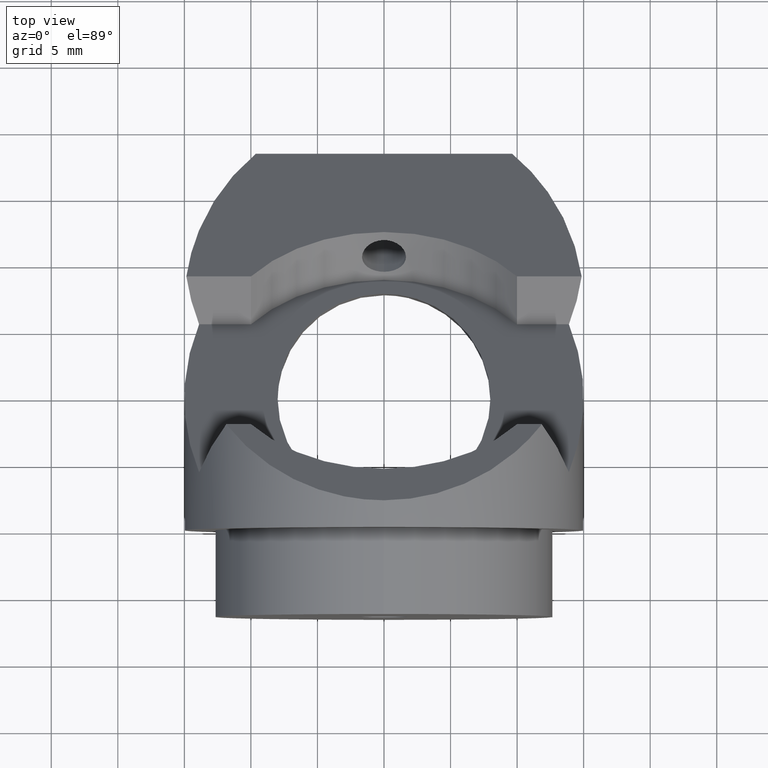
[diagram: clean part render]
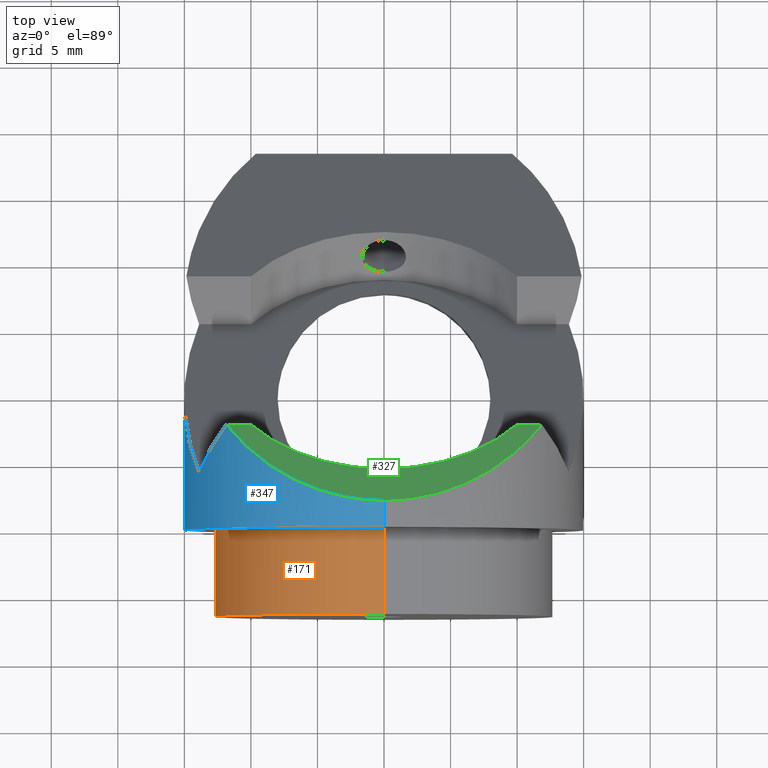
[diagram: same view with three faces highlighted in distinct colors, each labeled with its STEP entity id]
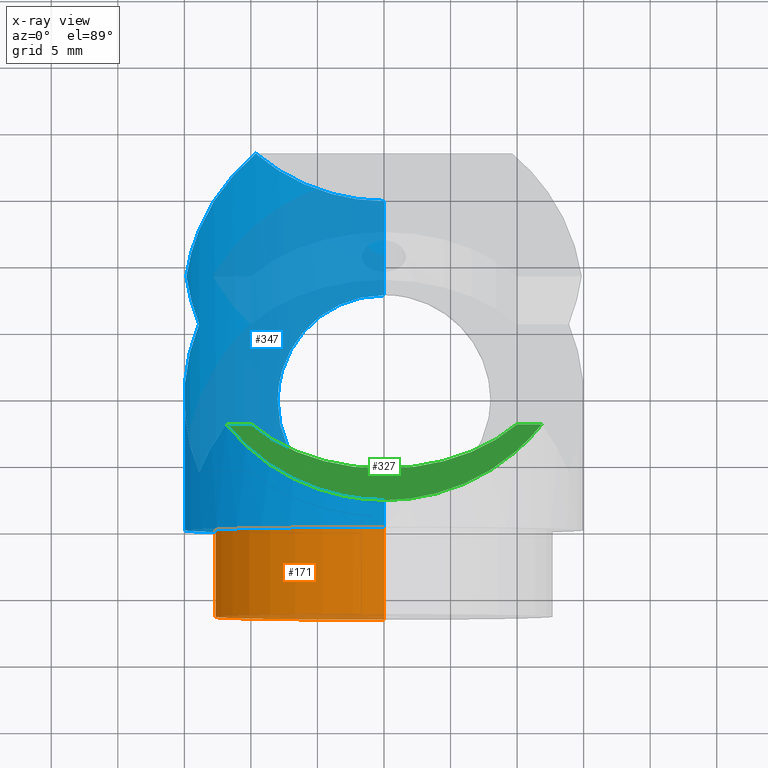
[diagram: x-ray of the same camera — body ghosted, the three highlighted faces saturated]
A machine part, top view with three faces highlighted in distinct colors.
The next image is the same camera in x-ray (body ghosted, the three faces saturated) — at least one of them is partly hidden behind the body in this view.
Their STEP definitions:

[orange] entity #171 — the highlighted cylindrical surface (partial cylindrical patch) has radius 12.7 mm, axis along (-0, -1, -0).
#6 = EDGE_CURVE ( 'NONE', #527, #781, #939, .T. ) ;
#32 = DIRECTION ( 'NONE',  ( 0.0000000000000000000, 0.0000000000000000000, -1.000000000000000000 ) ) ;
#36 = DIRECTION ( 'NONE',  ( -0.0000000000000000000, -1.000000000000000000, -0.0000000000000000000 ) ) ;
#74 = CARTESIAN_POINT ( 'NONE',  ( 0.0000000000000000000, -6.500000000000000000, -12.69999999999999900 ) ) ;
#112 = AXIS2_PLACEMENT_3D ( 'NONE', #393, #713, #940 ) ;
#160 = EDGE_CURVE ( 'NONE', #869, #368, #176, .T. ) ;
#171 = ADVANCED_FACE ( 'NONE', ( #253 ), #881, .T. ) ;
#176 = CIRCLE ( 'NONE', #785, 12.70000000000000300 ) ;
#179 = CARTESIAN_POINT ( 'NONE',  ( 0.0000000000000000000, -7.664944013781219000, 0.0000000000000000000 ) ) ;
#241 = DIRECTION ( 'NONE',  ( 0.0000000000000000000, 0.0000000000000000000, -1.000000000000000000 ) ) ;
#244 = CARTESIAN_POINT ( 'NONE',  ( 1.555301434917139000E-015, 0.0000000000000000000, 12.70000000000000500 ) ) ;
#253 = FACE_OUTER_BOUND ( 'NONE', #453, .T. ) ;
#330 = EDGE_CURVE ( 'NONE', #368, #781, #566, .T. ) ;
#335 = DIRECTION ( 'NONE',  ( -0.0000000000000000000, -1.000000000000000000, -0.0000000000000000000 ) ) ;
#368 = VERTEX_POINT ( 'NONE', #838 ) ;
#388 = CARTESIAN_POINT ( 'NONE',  ( 1.555301434917138600E-015, -7.664944013781219000, 12.70000000000000100 ) ) ;
#393 = CARTESIAN_POINT ( 'NONE',  ( 0.0000000000000000000, -6.500000000000000000, 0.0000000000000000000 ) ) ;
#453 = EDGE_LOOP ( 'NONE', ( #1007, #1002, #498, #971 ) ) ;
#498 = ORIENTED_EDGE ( 'NONE', *, *, #330, .T. ) ;
#527 = VERTEX_POINT ( 'NONE', #878 ) ;
#566 = LINE ( 'NONE', #975, #715 ) ;
#570 = LINE ( 'NONE', #388, #985 ) ;
#595 = DIRECTION ( 'NONE',  ( -0.0000000000000000000, -1.000000000000000000, -0.0000000000000000000 ) ) ;
#713 = DIRECTION ( 'NONE',  ( -0.0000000000000000000, -1.000000000000000000, -0.0000000000000000000 ) ) ;
#715 = VECTOR ( 'NONE', #595, 1000.000000000000000 ) ;
#716 = DIRECTION ( 'NONE',  ( -0.0000000000000000000, -1.000000000000000000, -0.0000000000000000000 ) ) ;
#728 = CARTESIAN_POINT ( 'NONE',  ( 0.0000000000000000000, 0.0000000000000000000, 0.0000000000000000000 ) ) ;
#781 = VERTEX_POINT ( 'NONE', #74 ) ;
#785 = AXIS2_PLACEMENT_3D ( 'NONE', #728, #36, #32 ) ;
#838 = CARTESIAN_POINT ( 'NONE',  ( 0.0000000000000000000, 0.0000000000000000000, -12.70000000000000300 ) ) ;
#869 = VERTEX_POINT ( 'NONE', #244 ) ;
#878 = CARTESIAN_POINT ( 'NONE',  ( 1.555301434917138600E-015, -6.500000000000000000, 12.69999999999999900 ) ) ;
#881 = CYLINDRICAL_SURFACE ( 'NONE', #885, 12.70000000000000100 ) ;
#885 = AXIS2_PLACEMENT_3D ( 'NONE', #179, #335, #241 ) ;
#927 = EDGE_CURVE ( 'NONE', #869, #527, #570, .T. ) ;
#939 = CIRCLE ( 'NONE', #112, 12.69999999999999900 ) ;
#940 = DIRECTION ( 'NONE',  ( 0.0000000000000000000, 0.0000000000000000000, -1.000000000000000000 ) ) ;
#971 = ORIENTED_EDGE ( 'NONE', *, *, #6, .F. ) ;
#975 = CARTESIAN_POINT ( 'NONE',  ( 0.0000000000000000000, -7.664944013781219000, -12.70000000000000100 ) ) ;
#985 = VECTOR ( 'NONE', #716, 1000.000000000000000 ) ;
#1002 = ORIENTED_EDGE ( 'NONE', *, *, #160, .T. ) ;
#1007 = ORIENTED_EDGE ( 'NONE', *, *, #927, .F. ) ;

[blue] entity #347 — the highlighted cylindrical surface (partial cylindrical patch) has radius 15 mm, axis along (-0, -1, -0).
#7 = VERTEX_POINT ( 'NONE', #858 ) ;
#13 = CARTESIAN_POINT ( 'NONE',  ( 1.312247599340864500E-016, 17.92893218813432600, -15.00000000000000000 ) ) ;
#18 = DIRECTION ( 'NONE',  ( -0.0000000000000000000, -1.000000000000000000, -0.0000000000000000000 ) ) ;
#30 = CARTESIAN_POINT ( 'NONE',  ( -5.848556111032858800, 15.39335958322153500, -13.81421338319534400 ) ) ;
#37 = CYLINDRICAL_SURFACE ( 'NONE', #813, 15.00000000000000000 ) ;
#61 = DIRECTION ( 'NONE',  ( -0.0000000000000000000, -1.000000000000000000, -0.0000000000000000000 ) ) ;
#63 = CARTESIAN_POINT ( 'NONE',  ( -3.576409944130032800, 2.753947597043895400, -14.57566637414122600 ) ) ;
#75 = VERTEX_POINT ( 'NONE', #854 ) ;
#96 = CARTESIAN_POINT ( 'NONE',  ( -11.85326959112950500, 7.807611844574621400, 9.192388155425320000 ) ) ;
#105 = CARTESIAN_POINT ( 'NONE',  ( 1.312247599340864500E-016, 17.92893218813432600, -15.00000000000000000 ) ) ;
#107 = VERTEX_POINT ( 'NONE', #321 ) ;
#113 = CIRCLE ( 'NONE', #644, 15.00000000000000000 ) ;
#121 = CARTESIAN_POINT ( 'NONE',  ( -4.720855478036189500, 2.000000000000001800, 15.00000000000000000 ) ) ;
#131 = CARTESIAN_POINT ( 'NONE',  ( -12.69220912968829600, 6.725828052043423700, 8.110604362894134700 ) ) ;
#134 = CARTESIAN_POINT ( 'NONE',  ( -8.000000000000104800, 9.928932188134222500, -12.68857754044945300 ) ) ;
#135 = EDGE_CURVE ( 'NONE', #753, #7, #355, .T. ) ;
#140 = CARTESIAN_POINT ( 'NONE',  ( -1.843974823227151300, 2.139791552717057700, -14.88854263611860200 ) ) ;
#144 = CARTESIAN_POINT ( 'NONE',  ( -7.986389873771929400, 9.391158058453209300, -12.69718802926070500 ) ) ;
#157 = VECTOR ( 'NONE', #18, 1000.000000000000000 ) ;
#159 = ORIENTED_EDGE ( 'NONE', *, *, #135, .T. ) ;
#172 = VERTEX_POINT ( 'NONE', #880 ) ;
#193 = CARTESIAN_POINT ( 'NONE',  ( -7.568643659071402600, 12.53391963720620700, -12.95082402000563900 ) ) ;
#196 = VERTEX_POINT ( 'NONE', #577 ) ;
#199 = CARTESIAN_POINT ( 'NONE',  ( 0.0000000000000000000, 25.00000000000000700, -15.00000000000000000 ) ) ;
#204 = CARTESIAN_POINT ( 'NONE',  ( -6.492218660363217700, 5.247279350077104900, -13.52320181177037400 ) ) ;
#208 = CARTESIAN_POINT ( 'NONE',  ( -7.932593759793550500, 8.858614257552190500, -12.73086655763748500 ) ) ;
#216 = CARTESIAN_POINT ( 'NONE',  ( -7.892611762494417400, 8.596062843617303900, -12.75580203211171000 ) ) ;
#236 = CARTESIAN_POINT ( 'NONE',  ( -14.35518363273349100, 16.72221037440975200, -4.520430312709232000 ) ) ;
#239 = FACE_OUTER_BOUND ( 'NONE', #898, .T. ) ;
#248 = CARTESIAN_POINT ( 'NONE',  ( -11.85326959112950500, 7.807611844574621400, 9.192388155425320000 ) ) ;
#251 = CARTESIAN_POINT ( 'NONE',  ( -1.069685864931536600, 17.87477445671359500, -14.97091841634727900 ) ) ;
#267 = CARTESIAN_POINT ( 'NONE',  ( -6.933866580047388900, 13.95241040639131600, -13.30505045249553400 ) ) ;
#271 = CARTESIAN_POINT ( 'NONE',  ( -6.502563963584512900, 14.59619933070975000, -13.51822400401877500 ) ) ;
#274 = LINE ( 'NONE', #466, #679 ) ;
#275 = EDGE_CURVE ( 'NONE', #786, #372, #626, .T. ) ;
#276 = CARTESIAN_POINT ( 'NONE',  ( -3.558319546696726100, 25.00000000000001100, -15.00000000000000200 ) ) ;
#278 = CARTESIAN_POINT ( 'NONE',  ( -6.925117495538727600, 5.890386237769818400, -13.30963219538147000 ) ) ;
#293 = CARTESIAN_POINT ( 'NONE',  ( -7.722212791776017900, 7.822507221936043600, -12.85984451120371100 ) ) ;
#303 = EDGE_CURVE ( 'NONE', #196, #75, #762, .T. ) ;
#321 = CARTESIAN_POINT ( 'NONE',  ( -13.89244398944966500, 4.272077938641865000, 5.656854249492601700 ) ) ;
#329 = CARTESIAN_POINT ( 'NONE',  ( -3.588620696134561200, 17.09808622551051400, -14.57277584346299200 ) ) ;
#331 = CARTESIAN_POINT ( 'NONE',  ( -14.84924240491746000, 19.12132034355941500, -2.121320343559593500 ) ) ;
#336 = EDGE_CURVE ( 'NONE', #107, #932, #685, .T. ) ;
#347 = ADVANCED_FACE ( 'NONE', ( #239 ), #37, .T. ) ;
#349 = EDGE_CURVE ( 'NONE', #372, #753, #845, .T. ) ;
#354 = CARTESIAN_POINT ( 'NONE',  ( -13.89244398944966500, 4.272077938641865000, 5.656854249492601700 ) ) ;
#355 = LINE ( 'NONE', #864, #157 ) ;
#372 = VERTEX_POINT ( 'NONE', #683 ) ;
#387 = VECTOR ( 'NONE', #591, 1000.000000000000000 ) ;
#415 = CARTESIAN_POINT ( 'NONE',  ( -13.89244398944976300, 15.58578643762660000, -5.656854249492376100 ) ) ;
#416 = CARTESIAN_POINT ( 'NONE',  ( -12.50011912809284600, 26.09698703815879700, -9.096987038159044300 ) ) ;
#419 = CARTESIAN_POINT ( 'NONE',  ( 0.0000000000000000000, 0.0000000000000000000, 0.0000000000000000000 ) ) ;
#420 = CARTESIAN_POINT ( 'NONE',  ( -13.37617350418275600, 5.539966147114007800, 6.924742457964731200 ) ) ;
#428 = CARTESIAN_POINT ( 'NONE',  ( -14.31993811834982600, 22.82645034953319300, -5.826450349533404300 ) ) ;
#434 = CARTESIAN_POINT ( 'NONE',  ( -7.566662152314264300, 7.318334476416273700, -12.95198035539508700 ) ) ;
#437 = CARTESIAN_POINT ( 'NONE',  ( 1.836970198721029600E-015, 0.0000000000000000000, 15.00000000000000000 ) ) ;
#439 = CARTESIAN_POINT ( 'NONE',  ( -5.836924079388349000, 4.452095560247782300, -13.81913387922050200 ) ) ;
#442 = ORIENTED_EDGE ( 'NONE', *, *, #448, .T. ) ;
#447 = CARTESIAN_POINT ( 'NONE',  ( -0.5330492255742383900, 1.928932188134117900, -15.00000000000000700 ) ) ;
#448 = EDGE_CURVE ( 'NONE', #630, #786, #274, .T. ) ;
#449 = CARTESIAN_POINT ( 'NONE',  ( -2.856254063075164900, 2.451660578791558200, -14.72759322876118800 ) ) ;
#458 =( BOUNDED_CURVE ( )  B_SPLINE_CURVE ( 3, ( #248, #970, #121, #507 ),
 .UNSPECIFIED., .F., .T. ) 
 B_SPLINE_CURVE_WITH_KNOTS ( ( 4, 4 ),
 ( 5.372020706668941200, 6.283185307179586200 ),
 .UNSPECIFIED. ) 
 CURVE ( )  GEOMETRIC_REPRESENTATION_ITEM ( )  RATIONAL_B_SPLINE_CURVE ( ( 1.000000000000000000, 0.9320033179247989600, 0.9320033179247989600, 1.000000000000000000 ) ) 
 REPRESENTATION_ITEM ( '' )  );
#466 = CARTESIAN_POINT ( 'NONE',  ( 0.0000000000000000000, -7.664944013781219000, -15.00000000000000000 ) ) ;
#483 = CARTESIAN_POINT ( 'NONE',  ( -4.045133338712337200, 16.85047873258502400, -14.45133817646340500 ) ) ;
#489 = CARTESIAN_POINT ( 'NONE',  ( -13.89244398944966500, 4.272077938641865000, 5.656854249492601700 ) ) ;
#490 = CARTESIAN_POINT ( 'NONE',  ( -5.487113113989489800, 15.75620985565317300, -13.96172230258995500 ) ) ;
#497 =( BOUNDED_CURVE ( )  B_SPLINE_CURVE ( 3, ( #331, #720, #236, #859 ),
 .UNSPECIFIED., .F., .F. ) 
 B_SPLINE_CURVE_WITH_KNOTS ( ( 4, 4 ),
 ( 4.854286034988851000, 5.099077606540491900 ),
 .UNSPECIFIED. ) 
 CURVE ( )  GEOMETRIC_REPRESENTATION_ITEM ( )  RATIONAL_B_SPLINE_CURVE ( ( 1.000000000000000000, 0.9950126547132646100, 0.9950126547132646100, 1.000000000000000000 ) ) 
 REPRESENTATION_ITEM ( '' )  );
#503 = CARTESIAN_POINT ( 'NONE',  ( -15.38829925571960500, 7.945689558534887500, 1.983242629599501200 ) ) ;
#507 = CARTESIAN_POINT ( 'NONE',  ( 1.836970198721029600E-015, 2.000000000000001800, 15.00000000000000000 ) ) ;
#515 = CARTESIAN_POINT ( 'NONE',  ( -7.790209122528918500, 11.76812732826659400, -12.81859580687657800 ) ) ;
#516 = EDGE_CURVE ( 'NONE', #172, #107, #535, .T. ) ;
#517 = CARTESIAN_POINT ( 'NONE',  ( -7.724543757968519700, 12.02696702556041700, -12.85844599344674100 ) ) ;
#520 = EDGE_CURVE ( 'NONE', #932, #943, #458, .T. ) ;
#526 = CARTESIAN_POINT ( 'NONE',  ( -7.787422227111571600, 8.078009126603351600, -12.82029098626778900 ) ) ;
#529 = CARTESIAN_POINT ( 'NONE',  ( -1.060651640871473000, 1.981678697479633700, -14.97166650715893400 ) ) ;
#535 =( BOUNDED_CURVE ( )  B_SPLINE_CURVE ( 3, ( #415, #648, #503, #489 ),
 .UNSPECIFIED., .F., .T. ) 
 B_SPLINE_CURVE_WITH_KNOTS ( ( 4, 4 ),
 ( 4.325700354228887400, 5.099077606540507900 ),
 .UNSPECIFIED. ) 
 CURVE ( )  GEOMETRIC_REPRESENTATION_ITEM ( )  RATIONAL_B_SPLINE_CURVE ( ( 1.000000000000000000, 0.9507752884199890400, 0.9507752884199890400, 1.000000000000000000 ) ) 
 REPRESENTATION_ITEM ( '' )  );
#541 = DIRECTION ( 'NONE',  ( 0.0000000000000000000, 0.0000000000000000000, -1.000000000000000000 ) ) ;
#557 =( BOUNDED_CURVE ( )  B_SPLINE_CURVE ( 3, ( #199, #276, #751, #667 ),
 .UNSPECIFIED., .F., .F. ) 
 B_SPLINE_CURVE_WITH_KNOTS ( ( 4, 4 ),
 ( 0.0000000000000000000, 0.6971631336422135000 ),
 .UNSPECIFIED. ) 
 CURVE ( )  GEOMETRIC_REPRESENTATION_ITEM ( )  RATIONAL_B_SPLINE_CURVE ( ( 1.000000000000000000, 0.9599054302165213000, 0.9599054302165213000, 1.000000000000000000 ) ) 
 REPRESENTATION_ITEM ( '' )  );
#569 = CARTESIAN_POINT ( 'NONE',  ( -4.900731299555951100, 16.25737451704031900, -14.17841221936554600 ) ) ;
#577 = CARTESIAN_POINT ( 'NONE',  ( -9.630680142128881000, 28.49999999999988300, -11.50000000000015800 ) ) ;
#590 = ORIENTED_EDGE ( 'NONE', *, *, #623, .F. ) ;
#591 = DIRECTION ( 'NONE',  ( -0.0000000000000000000, -1.000000000000000000, -0.0000000000000000000 ) ) ;
#592 = CARTESIAN_POINT ( 'NONE',  ( -7.177967971487818000, 13.49920839242508400, -13.17307734203847900 ) ) ;
#596 = CARTESIAN_POINT ( 'NONE',  ( 1.836970198721029600E-015, -7.664944013781219000, 15.00000000000000000 ) ) ;
#604 = DIRECTION ( 'NONE',  ( 0.0000000000000000000, 0.0000000000000000000, -1.000000000000000000 ) ) ;
#607 = CARTESIAN_POINT ( 'NONE',  ( -2.104764605822110600, 2.206246456508055100, -14.85380156965941500 ) ) ;
#611 = CARTESIAN_POINT ( 'NONE',  ( -2.763774181441814900E-024, 1.928932188134118200, -15.00000000000000000 ) ) ;
#618 = CARTESIAN_POINT ( 'NONE',  ( -6.009205169887722200, 4.641618903441958800, -13.74487954241180900 ) ) ;
#619 = CARTESIAN_POINT ( 'NONE',  ( -2.763774181441814900E-024, 1.928932188134118200, -15.00000000000000000 ) ) ;
#621 = CARTESIAN_POINT ( 'NONE',  ( -4.032228139331059500, 2.999812001776865700, -14.45497494079410000 ) ) ;
#623 = EDGE_CURVE ( 'NONE', #673, #7, #113, .T. ) ;
#625 = ORIENTED_EDGE ( 'NONE', *, *, #627, .F. ) ;
#626 = B_SPLINE_CURVE_WITH_KNOTS ( 'NONE', 3,
 ( #105, #949, #251, #798, #645, #329, #483, #958, #569, #875, #490, #30, #808, #752, #271, #267, #592, #986, #193, #517, #515, #888, #817, #134 ),
 .UNSPECIFIED., .F., .F.,
 ( 4, 2, 2, 2, 2, 2, 2, 2, 2, 2, 2, 4 ),
 ( 1.272160798514105200E-019, 0.001595946292758094200, 0.003191892585516188000, 0.004787838878274282300, 0.005585812024653327900, 0.006383785171032372600, 0.007181758317411418200, 0.007979731463790463000, 0.009575677756548552400, 0.01037365090292759700, 0.01117162404930664000, 0.01276757034206472600 ),
 .UNSPECIFIED. ) ;
#627 = EDGE_CURVE ( 'NONE', #943, #673, #855, .T. ) ;
#630 = VERTEX_POINT ( 'NONE', #823 ) ;
#644 = AXIS2_PLACEMENT_3D ( 'NONE', #419, #61, #604 ) ;
#645 = CARTESIAN_POINT ( 'NONE',  ( -2.622107537922459700, 17.50517929154395300, -14.77729834388254900 ) ) ;
#648 = CARTESIAN_POINT ( 'NONE',  ( -15.38829925571963400, 11.91217481773356600, -1.983242629599261800 ) ) ;
#650 = EDGE_CURVE ( 'NONE', #630, #196, #557, .T. ) ;
#667 = CARTESIAN_POINT ( 'NONE',  ( -9.630680142128881000, 28.49999999999988300, -11.50000000000015800 ) ) ;
#668 = CARTESIAN_POINT ( 'NONE',  ( -14.84924240491746000, 19.12132034355941500, -2.121320343559593500 ) ) ;
#671 = CARTESIAN_POINT ( 'NONE',  ( -11.85326959112950500, 7.807611844574621400, 9.192388155425320000 ) ) ;
#673 = VERTEX_POINT ( 'NONE', #437 ) ;
#675 = ORIENTED_EDGE ( 'NONE', *, *, #275, .T. ) ;
#679 = VECTOR ( 'NONE', #935, 1000.000000000000000 ) ;
#683 = CARTESIAN_POINT ( 'NONE',  ( -8.000000000000104800, 9.928932188134222500, -12.68857754044945300 ) ) ;
#685 =( BOUNDED_CURVE ( )  B_SPLINE_CURVE ( 3, ( #354, #420, #131, #671 ),
 .UNSPECIFIED., .F., .F. ) 
 B_SPLINE_CURVE_WITH_KNOTS ( ( 4, 4 ),
 ( 1.957484952950715000, 2.230428053079148000 ),
 .UNSPECIFIED. ) 
 CURVE ( )  GEOMETRIC_REPRESENTATION_ITEM ( )  RATIONAL_B_SPLINE_CURVE ( ( 1.000000000000000000, 0.9938014680113467200, 0.9938014680113467200, 1.000000000000000000 ) ) 
 REPRESENTATION_ITEM ( '' )  );
#692 = DIRECTION ( 'NONE',  ( -0.0000000000000000000, -1.000000000000000000, -0.0000000000000000000 ) ) ;
#705 = ORIENTED_EDGE ( 'NONE', *, *, #349, .T. ) ;
#714 = ORIENTED_EDGE ( 'NONE', *, *, #520, .F. ) ;
#720 = CARTESIAN_POINT ( 'NONE',  ( -14.67571503868612100, 17.90662877993970200, -3.336011907179294400 ) ) ;
#736 = ORIENTED_EDGE ( 'NONE', *, *, #303, .F. ) ;
#745 = CARTESIAN_POINT ( 'NONE',  ( 1.836970198721029600E-015, 2.000000000000001800, 15.00000000000000000 ) ) ;
#751 = CARTESIAN_POINT ( 'NONE',  ( -6.902635156328030600, 26.21539750681843000, -13.78460249318159800 ) ) ;
#752 = CARTESIAN_POINT ( 'NONE',  ( -6.347265946884006900, 14.80525344925208700, -13.59206978301116200 ) ) ;
#753 = VERTEX_POINT ( 'NONE', #619 ) ;
#758 = ORIENTED_EDGE ( 'NONE', *, *, #650, .F. ) ;
#759 = ORIENTED_EDGE ( 'NONE', *, *, #336, .F. ) ;
#762 =( BOUNDED_CURVE ( )  B_SPLINE_CURVE ( 3, ( #893, #416, #428, #668 ),
 .UNSPECIFIED., .F., .F. ) 
 B_SPLINE_CURVE_WITH_KNOTS ( ( 4, 4 ),
 ( 3.838755787232007100, 4.570491925780528300 ),
 .UNSPECIFIED. ) 
 CURVE ( )  GEOMETRIC_REPRESENTATION_ITEM ( )  RATIONAL_B_SPLINE_CURVE ( ( 1.000000000000000000, 0.9558757016912029500, 0.9558757016912029500, 1.000000000000000000 ) ) 
 REPRESENTATION_ITEM ( '' )  );
#765 = CARTESIAN_POINT ( 'NONE',  ( -2.610089792680260000, 2.362074172449627700, -14.77338439190168100 ) ) ;
#767 = CARTESIAN_POINT ( 'NONE',  ( -5.294259466463342000, 3.909587927322553600, -14.04006382546804600 ) ) ;
#786 = VERTEX_POINT ( 'NONE', #13 ) ;
#796 = ORIENTED_EDGE ( 'NONE', *, *, #516, .F. ) ;
#798 = CARTESIAN_POINT ( 'NONE',  ( -2.108082992927836000, 17.66434577124051200, -14.86030323289160800 ) ) ;
#808 = CARTESIAN_POINT ( 'NONE',  ( -6.020570510678419800, 15.20330653662835600, -13.73990089893911700 ) ) ;
#813 = AXIS2_PLACEMENT_3D ( 'NONE', #918, #692, #541 ) ;
#817 = CARTESIAN_POINT ( 'NONE',  ( -8.000000000000104800, 10.46358031276772700, -12.68857754044945800 ) ) ;
#823 = CARTESIAN_POINT ( 'NONE',  ( 0.0000000000000000000, 25.00000000000000700, -15.00000000000000000 ) ) ;
#842 = EDGE_CURVE ( 'NONE', #75, #172, #497, .T. ) ;
#843 = CARTESIAN_POINT ( 'NONE',  ( -6.336600760920594800, 5.038766614149111000, -13.59704935660367800 ) ) ;
#845 = B_SPLINE_CURVE_WITH_KNOTS ( 'NONE', 3,
 ( #992, #921, #144, #208, #216, #526, #293, #434, #906, #1004, #278, #204, #843, #618, #439, #767, #994, #621, #63, #449, #765, #607, #140, #529, #447, #611 ),
 .UNSPECIFIED., .F., .F.,
 ( 4, 2, 2, 2, 2, 2, 2, 2, 2, 2, 2, 2, 4 ),
 ( 0.01276757034206472600, 0.01356437395709705500, 0.01436117757212938700, 0.01515798118716171600, 0.01595478480219404700, 0.01754839203225871300, 0.01834519564729104500, 0.01914199926232337500, 0.02073560649238803700, 0.02232921372245270200, 0.02312601733748503200, 0.02392282095251736400, 0.02551642818258203000 ),
 .UNSPECIFIED. ) ;
#854 = CARTESIAN_POINT ( 'NONE',  ( -14.84924240491746000, 19.12132034355941500, -2.121320343559593500 ) ) ;
#855 = LINE ( 'NONE', #596, #387 ) ;
#858 = CARTESIAN_POINT ( 'NONE',  ( 0.0000000000000000000, 0.0000000000000000000, -15.00000000000000000 ) ) ;
#859 = CARTESIAN_POINT ( 'NONE',  ( -13.89244398944976300, 15.58578643762660000, -5.656854249492376100 ) ) ;
#864 = CARTESIAN_POINT ( 'NONE',  ( 0.0000000000000000000, -7.664944013781219000, -15.00000000000000000 ) ) ;
#875 = CARTESIAN_POINT ( 'NONE',  ( -5.297685044698814000, 15.92900575000930100, -14.03492335211974100 ) ) ;
#880 = CARTESIAN_POINT ( 'NONE',  ( -13.89244398944976300, 15.58578643762660000, -5.656854249492376100 ) ) ;
#888 = CARTESIAN_POINT ( 'NONE',  ( -7.946950181954490800, 10.99004978312811300, -12.72246082079875300 ) ) ;
#893 = CARTESIAN_POINT ( 'NONE',  ( -9.630680142128881000, 28.49999999999988300, -11.50000000000015800 ) ) ;
#898 = EDGE_LOOP ( 'NONE', ( #625, #714, #759, #796, #923, #736, #758, #442, #675, #705, #159, #590 ) ) ;
#906 = CARTESIAN_POINT ( 'NONE',  ( -7.475805299697055000, 7.068707276263065600, -13.00484229207788900 ) ) ;
#918 = CARTESIAN_POINT ( 'NONE',  ( 0.0000000000000000000, -7.664944013781219000, 0.0000000000000000000 ) ) ;
#921 = CARTESIAN_POINT ( 'NONE',  ( -8.000000000000103000, 9.661999923300925300, -12.68857754044945800 ) ) ;
#923 = ORIENTED_EDGE ( 'NONE', *, *, #842, .F. ) ;
#932 = VERTEX_POINT ( 'NONE', #96 ) ;
#935 = DIRECTION ( 'NONE',  ( -0.0000000000000000000, -1.000000000000000000, -0.0000000000000000000 ) ) ;
#943 = VERTEX_POINT ( 'NONE', #745 ) ;
#949 = CARTESIAN_POINT ( 'NONE',  ( -0.5402986801607242400, 17.92893218813432600, -15.00000000000000000 ) ) ;
#958 = CARTESIAN_POINT ( 'NONE',  ( -4.692197194411639800, 16.41360743539968700, -14.24901242870442900 ) ) ;
#970 = CARTESIAN_POINT ( 'NONE',  ( -8.960207192477884800, 4.077106999113070200, 12.92289300088691000 ) ) ;
#986 = CARTESIAN_POINT ( 'NONE',  ( -7.479163992759115600, 12.78018280200077300, -13.00289981827798200 ) ) ;
#992 = CARTESIAN_POINT ( 'NONE',  ( -8.000000000000104800, 9.928932188134222500, -12.68857754044945300 ) ) ;
#994 = CARTESIAN_POINT ( 'NONE',  ( -4.897071439797034700, 3.581471149409963100, -14.18533946087025700 ) ) ;
#1004 = CARTESIAN_POINT ( 'NONE',  ( -7.171281574116763500, 6.344671275952157100, -13.17676258676304000 ) ) ;

[green] entity #327 — the highlighted planar face has unit normal (0, 0.7071, 0.7071).
#15 = DIRECTION ( 'NONE',  ( 0.0000000000000000000, -0.7071067811865474600, 0.7071067811865475700 ) ) ;
#48 = DIRECTION ( 'NONE',  ( 0.0000000000000000000, 0.7071067811865512400, 0.7071067811865439100 ) ) ;
#49 = CIRCLE ( 'NONE', #328, 12.80000000000000100 ) ;
#67 = LINE ( 'NONE', #130, #191 ) ;
#76 = CARTESIAN_POINT ( 'NONE',  ( 4.720855478036206400, 2.000000000000002200, 15.00000000000000000 ) ) ;
#86 = DIRECTION ( 'NONE',  ( -0.0000000000000000000, 0.7071067811865475700, 0.7071067811865474600 ) ) ;
#96 = CARTESIAN_POINT ( 'NONE',  ( -11.85326959112950500, 7.807611844574621400, 9.192388155425320000 ) ) ;
#108 = CARTESIAN_POINT ( 'NONE',  ( 80.54744331758767800, 7.807611844574621400, 9.192388155425320000 ) ) ;
#117 = CARTESIAN_POINT ( 'NONE',  ( -9.991996797437233000, 7.807611844574652500, 9.192388155425289800 ) ) ;
#121 = CARTESIAN_POINT ( 'NONE',  ( -4.720855478036189500, 2.000000000000001800, 15.00000000000000000 ) ) ;
#123 = DIRECTION ( 'NONE',  ( -0.0000000000000000000, 0.7071067811865475700, 0.7071067811865474600 ) ) ;
#124 = CIRCLE ( 'NONE', #421, 12.80000000000000100 ) ;
#130 = CARTESIAN_POINT ( 'NONE',  ( 80.54744331758767800, 7.807611844574621400, 9.192388155425320000 ) ) ;
#191 = VECTOR ( 'NONE', #207, 1000.000000000000000 ) ;
#207 = DIRECTION ( 'NONE',  ( -1.000000000000000000, 0.0000000000000000000, 0.0000000000000000000 ) ) ;
#215 = VERTEX_POINT ( 'NONE', #117 ) ;
#248 = CARTESIAN_POINT ( 'NONE',  ( -11.85326959112950500, 7.807611844574621400, 9.192388155425320000 ) ) ;
#287 = CARTESIAN_POINT ( 'NONE',  ( 11.85326959112958900, 7.807611844574621400, 9.192388155425320000 ) ) ;
#294 = CARTESIAN_POINT ( 'NONE',  ( 1.836970198721029600E-015, 2.000000000000001800, 15.00000000000000000 ) ) ;
#296 = EDGE_CURVE ( 'NONE', #215, #456, #124, .T. ) ;
#327 = ADVANCED_FACE ( 'NONE', ( #407 ), #343, .T. ) ;
#328 = AXIS2_PLACEMENT_3D ( 'NONE', #870, #86, #15 ) ;
#332 = EDGE_LOOP ( 'NONE', ( #899, #748, #773, #488, #709, #905 ) ) ;
#341 =( BOUNDED_CURVE ( )  B_SPLINE_CURVE ( 3, ( #294, #76, #766, #366 ),
 .UNSPECIFIED., .F., .F. ) 
 B_SPLINE_CURVE_WITH_KNOTS ( ( 4, 4 ),
 ( 1.224646799147353000E-016, 0.9111646005106482900 ),
 .UNSPECIFIED. ) 
 CURVE ( )  GEOMETRIC_REPRESENTATION_ITEM ( )  RATIONAL_B_SPLINE_CURVE ( ( 1.000000000000000000, 0.9320033179247985100, 0.9320033179247985100, 1.000000000000000000 ) ) 
 REPRESENTATION_ITEM ( '' )  );
#343 = PLANE ( 'NONE',  #573 ) ;
#366 = CARTESIAN_POINT ( 'NONE',  ( 11.85326959112958900, 7.807611844574621400, 9.192388155425320000 ) ) ;
#407 = FACE_OUTER_BOUND ( 'NONE', #332, .T. ) ;
#421 = AXIS2_PLACEMENT_3D ( 'NONE', #902, #123, #980 ) ;
#456 = VERTEX_POINT ( 'NONE', #471 ) ;
#458 =( BOUNDED_CURVE ( )  B_SPLINE_CURVE ( 3, ( #248, #970, #121, #507 ),
 .UNSPECIFIED., .F., .T. ) 
 B_SPLINE_CURVE_WITH_KNOTS ( ( 4, 4 ),
 ( 5.372020706668941200, 6.283185307179586200 ),
 .UNSPECIFIED. ) 
 CURVE ( )  GEOMETRIC_REPRESENTATION_ITEM ( )  RATIONAL_B_SPLINE_CURVE ( ( 1.000000000000000000, 0.9320033179247989600, 0.9320033179247989600, 1.000000000000000000 ) ) 
 REPRESENTATION_ITEM ( '' )  );
#471 = CARTESIAN_POINT ( 'NONE',  ( 0.0000000000000000000, 4.413499294879401600, 12.58650070512053900 ) ) ;
#488 = ORIENTED_EDGE ( 'NONE', *, *, #954, .T. ) ;
#507 = CARTESIAN_POINT ( 'NONE',  ( 1.836970198721029600E-015, 2.000000000000001800, 15.00000000000000000 ) ) ;
#520 = EDGE_CURVE ( 'NONE', #932, #943, #458, .T. ) ;
#545 = LINE ( 'NONE', #108, #719 ) ;
#573 = AXIS2_PLACEMENT_3D ( 'NONE', #597, #48, #897 ) ;
#597 = CARTESIAN_POINT ( 'NONE',  ( 80.54744331758767800, 2.000000000000001800, 15.00000000000000000 ) ) ;
#633 = EDGE_CURVE ( 'NONE', #822, #774, #67, .T. ) ;
#660 = DIRECTION ( 'NONE',  ( -1.000000000000000000, 0.0000000000000000000, 0.0000000000000000000 ) ) ;
#689 = CARTESIAN_POINT ( 'NONE',  ( 9.991996797437233000, 7.807611844574652500, 9.192388155425289800 ) ) ;
#709 = ORIENTED_EDGE ( 'NONE', *, *, #520, .T. ) ;
#719 = VECTOR ( 'NONE', #660, 1000.000000000000000 ) ;
#745 = CARTESIAN_POINT ( 'NONE',  ( 1.836970198721029600E-015, 2.000000000000001800, 15.00000000000000000 ) ) ;
#748 = ORIENTED_EDGE ( 'NONE', *, *, #839, .F. ) ;
#766 = CARTESIAN_POINT ( 'NONE',  ( 8.960207192477913200, 4.077106999113083500, 12.92289300088689600 ) ) ;
#773 = ORIENTED_EDGE ( 'NONE', *, *, #296, .F. ) ;
#774 = VERTEX_POINT ( 'NONE', #689 ) ;
#789 = EDGE_CURVE ( 'NONE', #943, #822, #341, .T. ) ;
#822 = VERTEX_POINT ( 'NONE', #287 ) ;
#839 = EDGE_CURVE ( 'NONE', #456, #774, #49, .T. ) ;
#870 = CARTESIAN_POINT ( 'NONE',  ( 0.0000000000000000000, 13.46446609406720900, 3.535533905932731100 ) ) ;
#897 = DIRECTION ( 'NONE',  ( 0.0000000000000000000, -0.7071067811865439100, 0.7071067811865512400 ) ) ;
#899 = ORIENTED_EDGE ( 'NONE', *, *, #633, .T. ) ;
#902 = CARTESIAN_POINT ( 'NONE',  ( 0.0000000000000000000, 13.46446609406720900, 3.535533905932731100 ) ) ;
#905 = ORIENTED_EDGE ( 'NONE', *, *, #789, .T. ) ;
#932 = VERTEX_POINT ( 'NONE', #96 ) ;
#943 = VERTEX_POINT ( 'NONE', #745 ) ;
#954 = EDGE_CURVE ( 'NONE', #215, #932, #545, .T. ) ;
#970 = CARTESIAN_POINT ( 'NONE',  ( -8.960207192477884800, 4.077106999113070200, 12.92289300088691000 ) ) ;
#980 = DIRECTION ( 'NONE',  ( 0.0000000000000000000, -0.7071067811865474600, 0.7071067811865475700 ) ) ;